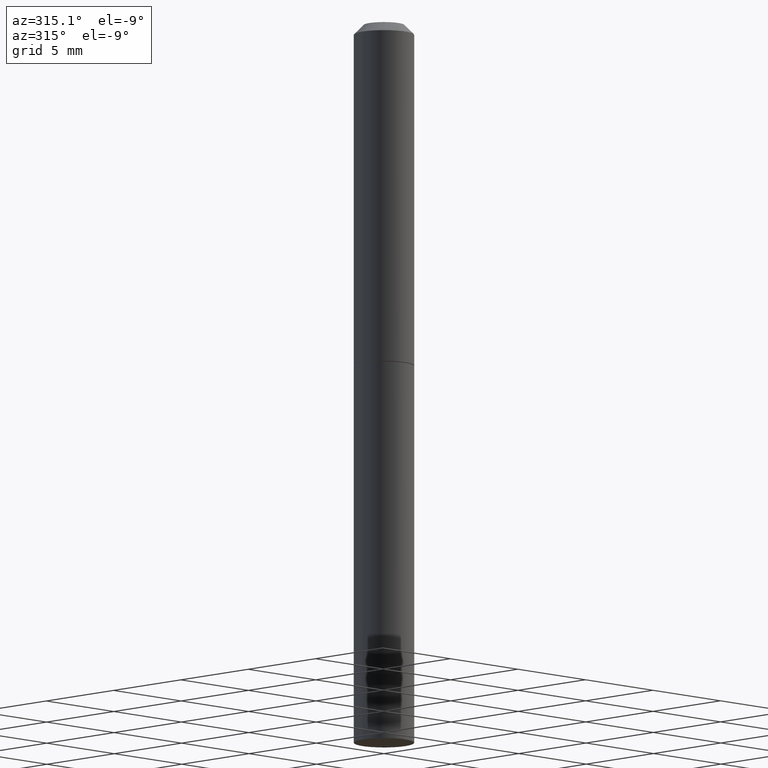
[diagram: clean part render]
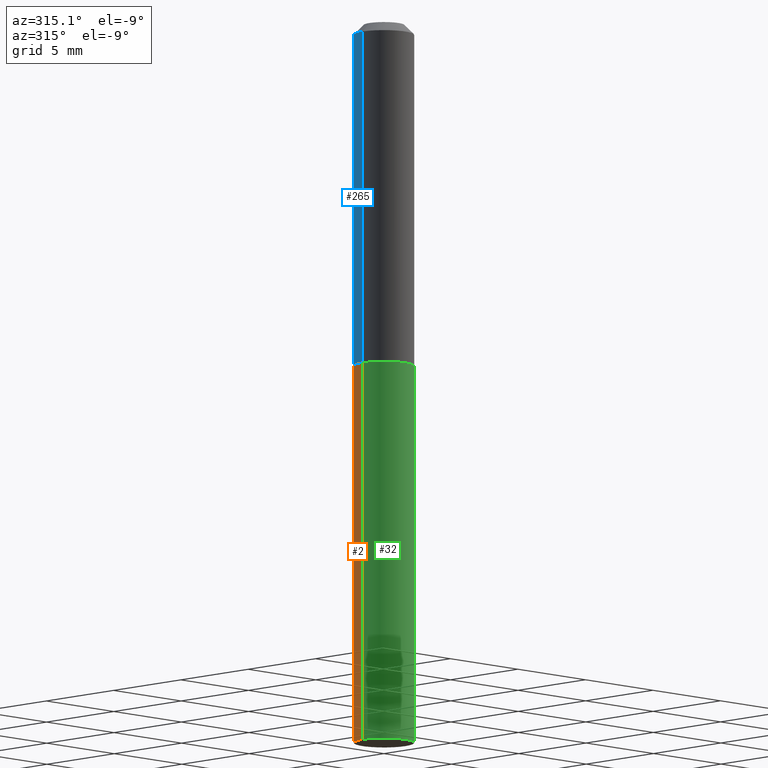
[diagram: same view with three faces highlighted in distinct colors, each labeled with its STEP entity id]
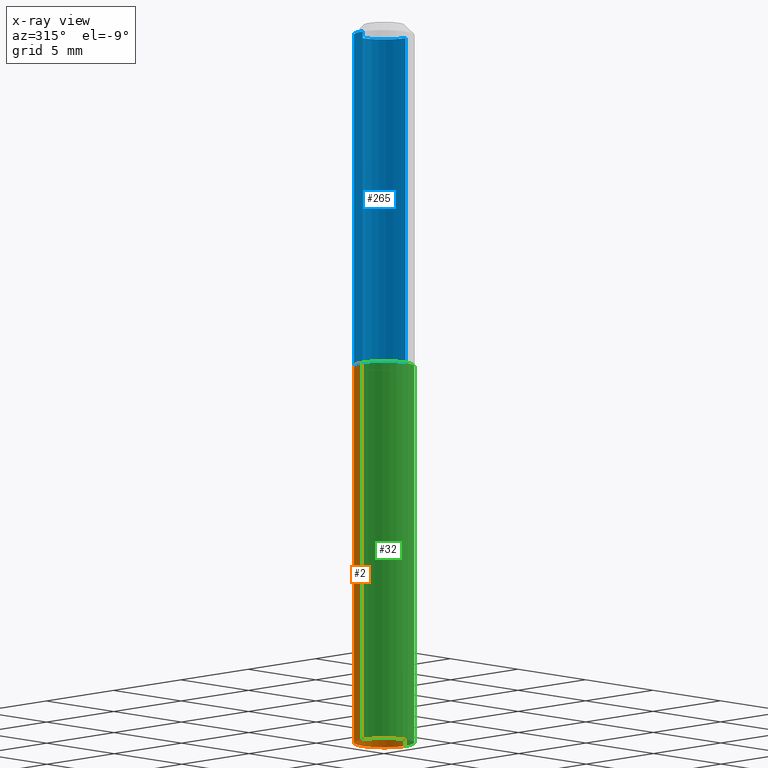
[diagram: x-ray of the same camera — body ghosted, the three highlighted faces saturated]
A machine part, auxiliary view with three faces highlighted in distinct colors.
The next image is the same camera in x-ray (body ghosted, the three faces saturated) — at least one of them is partly hidden behind the body in this view.
Their STEP definitions:

[orange] entity #2 — the highlighted cylindrical surface (edge-blend (fillet) strip) has radius 1.5875 mm, axis along (-0, 0, 1).
#2 = ADVANCED_FACE ( 'NONE', ( #347 ), #204, .T. ) ;
#10 = VERTEX_POINT ( 'NONE', #318 ) ;
#11 = LINE ( 'NONE', #197, #370 ) ;
#34 = CIRCLE ( 'NONE', #272, 0.06250000000000001388 ) ;
#43 = DIRECTION ( 'NONE',  ( -2.445468806185136877E-29, 3.491481338843145188E-15, 1.000000000000000000 ) ) ;
#57 = VERTEX_POINT ( 'NONE', #70 ) ;
#70 = CARTESIAN_POINT ( 'NONE',  ( -0.06250000000000034694, -4.800786840909323352E-15, -1.499999999999999778 ) ) ;
#78 = DIRECTION ( 'NONE',  ( 1.000000000000000000, -6.982962677686261189E-15, 0.000000000000000000 ) ) ;
#79 = AXIS2_PLACEMENT_3D ( 'NONE', #277, #338, #78 ) ;
#86 = ORIENTED_EDGE ( 'NONE', *, *, #366, .F. ) ;
#109 = CIRCLE ( 'NONE', #79, 0.06250000000000001388 ) ;
#120 = DIRECTION ( 'NONE',  ( 1.000000000000000000, -6.982962677686267499E-15, 4.876176775795935793E-29 ) ) ;
#140 = DIRECTION ( 'NONE',  ( 1.000000000000000000, -6.982962677686269077E-15, 0.000000000000000000 ) ) ;
#142 = EDGE_CURVE ( 'NONE', #328, #10, #34, .T. ) ;
#152 = ORIENTED_EDGE ( 'NONE', *, *, #250, .T. ) ;
#159 = AXIS2_PLACEMENT_3D ( 'NONE', #172, #314, #120 ) ;
#172 = CARTESIAN_POINT ( 'NONE',  ( 0.000000000000000000, 0.000000000000000000, 0.000000000000000000 ) ) ;
#174 = EDGE_CURVE ( 'NONE', #242, #57, #109, .T. ) ;
#182 = VECTOR ( 'NONE', #354, 39.37007874015748143 ) ;
#197 = CARTESIAN_POINT ( 'NONE',  ( -0.06250000000000001388, 4.440892098500627148E-16, -3.074334431409317165E-30 ) ) ;
#204 = CYLINDRICAL_SURFACE ( 'NONE', #159, 0.06250000000000001388 ) ;
#211 = LINE ( 'NONE', #386, #182 ) ;
#222 = DIRECTION ( 'NONE',  ( -2.445468806185136597E-29, 3.491481338843145583E-15, 1.000000000000000000 ) ) ;
#242 = VERTEX_POINT ( 'NONE', #335 ) ;
#250 = EDGE_CURVE ( 'NONE', #57, #10, #11, .T. ) ;
#272 = AXIS2_PLACEMENT_3D ( 'NONE', #367, #222, #140 ) ;
#277 = CARTESIAN_POINT ( 'NONE',  ( 3.668203209277704335E-29, -5.237222008264717388E-15, -1.499999999999999778 ) ) ;
#286 = ORIENTED_EDGE ( 'NONE', *, *, #142, .F. ) ;
#314 = DIRECTION ( 'NONE',  ( -2.445468806185136597E-29, 3.491481338843145583E-15, 1.000000000000000000 ) ) ;
#316 = CARTESIAN_POINT ( 'NONE',  ( 0.06250000000000001388, -2.924464769415017163E-15, -0.7125999999999999002 ) ) ;
#318 = CARTESIAN_POINT ( 'NONE',  ( -0.06250000000000001388, -3.418536595312108430E-15, -0.7125999999999999002 ) ) ;
#328 = VERTEX_POINT ( 'NONE', #316 ) ;
#335 = CARTESIAN_POINT ( 'NONE',  ( 0.06250000000000034694, -5.666003133125440477E-15, -1.499999999999999778 ) ) ;
#338 = DIRECTION ( 'NONE',  ( -2.445468806185136597E-29, 3.491481338843145583E-15, 1.000000000000000000 ) ) ;
#347 = FACE_OUTER_BOUND ( 'NONE', #364, .T. ) ;
#354 = DIRECTION ( 'NONE',  ( -2.445468806185136877E-29, 3.491481338843145188E-15, 1.000000000000000000 ) ) ;
#359 = ORIENTED_EDGE ( 'NONE', *, *, #174, .T. ) ;
#364 = EDGE_LOOP ( 'NONE', ( #359, #152, #286, #86 ) ) ;
#366 = EDGE_CURVE ( 'NONE', #242, #328, #211, .T. ) ;
#367 = CARTESIAN_POINT ( 'NONE',  ( 1.742641071287528217E-29, -2.488029602059625494E-15, -0.7125999999999999002 ) ) ;
#370 = VECTOR ( 'NONE', #43, 39.37007874015748143 ) ;
#386 = CARTESIAN_POINT ( 'NONE',  ( 0.06250000000000001388, -4.364351673553918173E-16, 3.047610484872460571E-30 ) ) ;

[blue] entity #265 — the highlighted cylindrical surface (edge-blend (fillet) strip) has radius 1.5875 mm, axis along (-0, 0, 1).
#15 = DIRECTION ( 'NONE',  ( -2.445468806185136877E-29, 3.491481338843145188E-15, 1.000000000000000000 ) ) ;
#19 = AXIS2_PLACEMENT_3D ( 'NONE', #307, #219, #131 ) ;
#21 = ORIENTED_EDGE ( 'NONE', *, *, #290, .T. ) ;
#28 = CARTESIAN_POINT ( 'NONE',  ( -0.06249999999999997918, 4.440892098500624683E-16, -3.074334431409315413E-30 ) ) ;
#38 = FACE_OUTER_BOUND ( 'NONE', #240, .T. ) ;
#39 = CARTESIAN_POINT ( 'NONE',  ( 1.740195602481343455E-29, -2.484538120720782881E-15, -0.7116000000000001213 ) ) ;
#46 = DIRECTION ( 'NONE',  ( -2.445468806185136597E-29, 3.491481338843145583E-15, 1.000000000000000000 ) ) ;
#103 = EDGE_CURVE ( 'NONE', #389, #175, #369, .T. ) ;
#119 = EDGE_CURVE ( 'NONE', #175, #305, #377, .T. ) ;
#131 = DIRECTION ( 'NONE',  ( 1.000000000000000000, -6.982962677686267499E-15, 4.876176775795936353E-29 ) ) ;
#133 = EDGE_CURVE ( 'NONE', #389, #325, #147, .T. ) ;
#147 = CIRCLE ( 'NONE', #340, 0.06250000000000001388 ) ;
#151 = DIRECTION ( 'NONE',  ( -2.445468806185136877E-29, 3.491481338843145188E-15, 1.000000000000000000 ) ) ;
#158 = DIRECTION ( 'NONE',  ( -2.445468806185136597E-29, 3.491481338843145583E-15, 1.000000000000000000 ) ) ;
#163 = CYLINDRICAL_SURFACE ( 'NONE', #19, 0.06249999999999997918 ) ;
#164 = CARTESIAN_POINT ( 'NONE',  ( 0.06249999999999997918, -4.364351673553915708E-16, 3.047610484872459170E-30 ) ) ;
#166 = DIRECTION ( 'NONE',  ( 1.000000000000000000, -6.982962677686266711E-15, 0.000000000000000000 ) ) ;
#175 = VERTEX_POINT ( 'NONE', #281 ) ;
#177 = CARTESIAN_POINT ( 'NONE',  ( -0.06250000000000001388, -8.330946638987597832E-16, -0.7116000000000001213 ) ) ;
#180 = ORIENTED_EDGE ( 'NONE', *, *, #133, .T. ) ;
#219 = DIRECTION ( 'NONE',  ( -2.445468806185136597E-29, 3.491481338843145583E-15, 1.000000000000000000 ) ) ;
#225 = CARTESIAN_POINT ( 'NONE',  ( 4.890937612370294178E-31, -6.982962677686321191E-17, -0.02000000000000008715 ) ) ;
#230 = VECTOR ( 'NONE', #151, 39.37007874015748143 ) ;
#240 = EDGE_LOOP ( 'NONE', ( #180, #21, #260, #374 ) ) ;
#244 = DIRECTION ( 'NONE',  ( 1.000000000000000000, -6.982962677686269077E-15, 0.000000000000000000 ) ) ;
#260 = ORIENTED_EDGE ( 'NONE', *, *, #119, .F. ) ;
#265 = ADVANCED_FACE ( 'NONE', ( #38 ), #163, .T. ) ;
#281 = CARTESIAN_POINT ( 'NONE',  ( 0.06249999999999995143, -4.986107516375836264E-16, -0.02000000000000008715 ) ) ;
#290 = EDGE_CURVE ( 'NONE', #325, #305, #321, .T. ) ;
#292 = VECTOR ( 'NONE', #15, 39.37007874015748143 ) ;
#305 = VERTEX_POINT ( 'NONE', #320 ) ;
#307 = CARTESIAN_POINT ( 'NONE',  ( 0.000000000000000000, 0.000000000000000000, 0.000000000000000000 ) ) ;
#320 = CARTESIAN_POINT ( 'NONE',  ( -0.06249999999999995143, 3.666055405785281247E-16, -0.02000000000000008715 ) ) ;
#321 = LINE ( 'NONE', #28, #230 ) ;
#325 = VERTEX_POINT ( 'NONE', #177 ) ;
#326 = AXIS2_PLACEMENT_3D ( 'NONE', #225, #46, #166 ) ;
#340 = AXIS2_PLACEMENT_3D ( 'NONE', #39, #158, #244 ) ;
#369 = LINE ( 'NONE', #164, #292 ) ;
#374 = ORIENTED_EDGE ( 'NONE', *, *, #103, .F. ) ;
#377 = CIRCLE ( 'NONE', #326, 0.06249999999999995143 ) ;
#385 = CARTESIAN_POINT ( 'NONE',  ( 0.06250000000000001388, -2.920973288076174551E-15, -0.7116000000000001213 ) ) ;
#389 = VERTEX_POINT ( 'NONE', #385 ) ;

[green] entity #32 — the highlighted cylindrical surface (edge-blend (fillet) strip) has radius 1.5875 mm, axis along (-0, 0, 1).
#10 = VERTEX_POINT ( 'NONE', #318 ) ;
#11 = LINE ( 'NONE', #197, #370 ) ;
#12 = CIRCLE ( 'NONE', #268, 0.06250000000000001388 ) ;
#16 = DIRECTION ( 'NONE',  ( 1.000000000000000000, -6.982962677686269077E-15, 0.000000000000000000 ) ) ;
#20 = DIRECTION ( 'NONE',  ( -2.445468806185136597E-29, 3.491481338843145583E-15, 1.000000000000000000 ) ) ;
#32 = ADVANCED_FACE ( 'NONE', ( #58 ), #148, .T. ) ;
#40 = ORIENTED_EDGE ( 'NONE', *, *, #90, .T. ) ;
#43 = DIRECTION ( 'NONE',  ( -2.445468806185136877E-29, 3.491481338843145188E-15, 1.000000000000000000 ) ) ;
#45 = CARTESIAN_POINT ( 'NONE',  ( 1.742641071287528217E-29, -2.488029602059625494E-15, -0.7125999999999999002 ) ) ;
#57 = VERTEX_POINT ( 'NONE', #70 ) ;
#58 = FACE_OUTER_BOUND ( 'NONE', #296, .T. ) ;
#68 = AXIS2_PLACEMENT_3D ( 'NONE', #285, #20, #384 ) ;
#70 = CARTESIAN_POINT ( 'NONE',  ( -0.06250000000000034694, -4.800786840909323352E-15, -1.499999999999999778 ) ) ;
#90 = EDGE_CURVE ( 'NONE', #57, #242, #128, .T. ) ;
#106 = DIRECTION ( 'NONE',  ( 1.000000000000000000, -6.982962677686261189E-15, 0.000000000000000000 ) ) ;
#107 = DIRECTION ( 'NONE',  ( -2.445468806185136597E-29, 3.491481338843145583E-15, 1.000000000000000000 ) ) ;
#114 = ORIENTED_EDGE ( 'NONE', *, *, #366, .T. ) ;
#128 = CIRCLE ( 'NONE', #203, 0.06250000000000001388 ) ;
#148 = CYLINDRICAL_SURFACE ( 'NONE', #68, 0.06250000000000001388 ) ;
#160 = ORIENTED_EDGE ( 'NONE', *, *, #250, .F. ) ;
#182 = VECTOR ( 'NONE', #354, 39.37007874015748143 ) ;
#185 = ORIENTED_EDGE ( 'NONE', *, *, #227, .F. ) ;
#197 = CARTESIAN_POINT ( 'NONE',  ( -0.06250000000000001388, 4.440892098500627148E-16, -3.074334431409317165E-30 ) ) ;
#203 = AXIS2_PLACEMENT_3D ( 'NONE', #246, #282, #106 ) ;
#211 = LINE ( 'NONE', #386, #182 ) ;
#227 = EDGE_CURVE ( 'NONE', #10, #328, #12, .T. ) ;
#242 = VERTEX_POINT ( 'NONE', #335 ) ;
#246 = CARTESIAN_POINT ( 'NONE',  ( 3.668203209277704335E-29, -5.237222008264717388E-15, -1.499999999999999778 ) ) ;
#250 = EDGE_CURVE ( 'NONE', #57, #10, #11, .T. ) ;
#268 = AXIS2_PLACEMENT_3D ( 'NONE', #45, #107, #16 ) ;
#282 = DIRECTION ( 'NONE',  ( -2.445468806185136597E-29, 3.491481338843145583E-15, 1.000000000000000000 ) ) ;
#285 = CARTESIAN_POINT ( 'NONE',  ( 0.000000000000000000, 0.000000000000000000, 0.000000000000000000 ) ) ;
#296 = EDGE_LOOP ( 'NONE', ( #160, #40, #114, #185 ) ) ;
#316 = CARTESIAN_POINT ( 'NONE',  ( 0.06250000000000001388, -2.924464769415017163E-15, -0.7125999999999999002 ) ) ;
#318 = CARTESIAN_POINT ( 'NONE',  ( -0.06250000000000001388, -3.418536595312108430E-15, -0.7125999999999999002 ) ) ;
#328 = VERTEX_POINT ( 'NONE', #316 ) ;
#335 = CARTESIAN_POINT ( 'NONE',  ( 0.06250000000000034694, -5.666003133125440477E-15, -1.499999999999999778 ) ) ;
#354 = DIRECTION ( 'NONE',  ( -2.445468806185136877E-29, 3.491481338843145188E-15, 1.000000000000000000 ) ) ;
#366 = EDGE_CURVE ( 'NONE', #242, #328, #211, .T. ) ;
#370 = VECTOR ( 'NONE', #43, 39.37007874015748143 ) ;
#384 = DIRECTION ( 'NONE',  ( 1.000000000000000000, -6.982962677686267499E-15, 4.876176775795935793E-29 ) ) ;
#386 = CARTESIAN_POINT ( 'NONE',  ( 0.06250000000000001388, -4.364351673553918173E-16, 3.047610484872460571E-30 ) ) ;